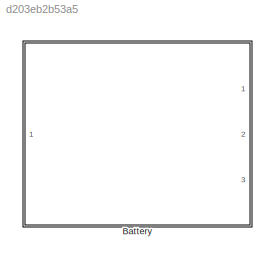
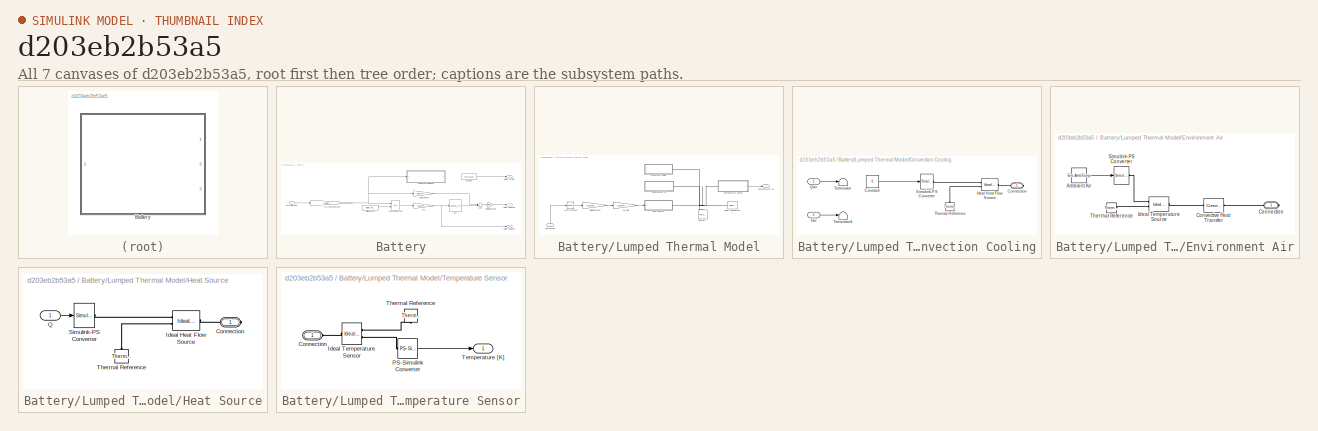
[diagram: thumbnail index - all 7 canvases of the model, root first then tree order]
MODEL slx_d203eb2b53a5
KIND library
CONFIG AbsTol = auto
CONFIG FixedStep = auto
CONFIG MaxStep = auto
CONFIG MinStep = auto
CONFIG RelTol = 1e-3
CONFIG SampleTimeConstraint = Unconstrained
CONFIG Solver = ode45
CONFIG SolverMode = Auto
CONFIG SolverName = ode45
CONFIG StartTime = 0.0
CONFIG StopTime = 10.0
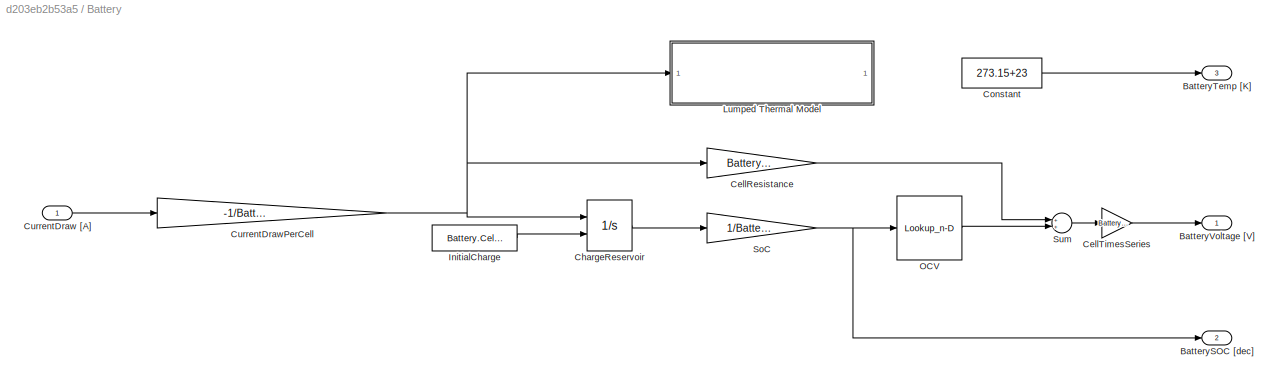
BLOCK [SubSystem] Battery
  Ports = [1, 3]
  RequestExecContextInheritance = off
BLOCK [Outport] Battery/BatterySOC [dec]
  IconDisplay = Port number
  Port = 2
BLOCK [Outport] Battery/BatteryTemp [K]
  IconDisplay = Port number
  Port = 3
BLOCK [Outport] Battery/BatteryVoltage [V]
  IconDisplay = Port number
BLOCK [Gain] Battery/CellResistance
  Gain = Battery.Cell.R
  OutDataTypeStr = Inherit: Inherit via internal rule
  ParamDataTypeStr = Inherit: Inherit via internal rule
  SaturateOnIntegerOverflow = off
BLOCK [Gain] Battery/CellTimesSeries
  Gain = Battery.Cell.NumSeries
  OutDataTypeStr = Inherit: Inherit via internal rule
  ParamDataTypeStr = Inherit: Inherit via internal rule
  SaturateOnIntegerOverflow = off
BLOCK [Integrator] Battery/ChargeReservoir
  InitialConditionSource = external
  Ports = [2, 1]
BLOCK [Constant] Battery/Constant
  Value = 273.15+23
BLOCK [Inport] Battery/CurrentDraw [A]
  IconDisplay = Port number
BLOCK [Gain] Battery/CurrentDrawPerCell
  Gain = -1/Battery.Cell.NumParallel
  OutDataTypeStr = Inherit: Inherit via internal rule
  ParamDataTypeStr = Inherit: Inherit via internal rule
  SaturateOnIntegerOverflow = off
BLOCK [Constant] Battery/InitialCharge
  Value = Battery.Cell.Qi
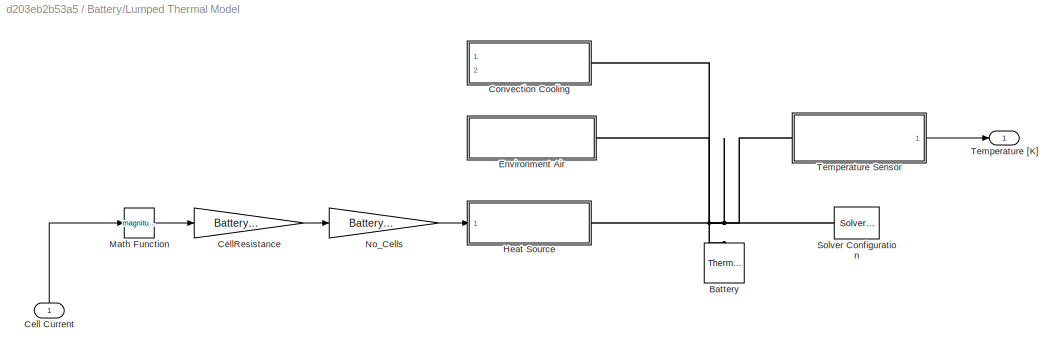
BLOCK [SubSystem] Battery/Lumped Thermal Model
  Commented = on
  Ports = [1, 1]
  RequestExecContextInheritance = off
BLOCK [Reference] Battery/Lumped Thermal Model/Battery  REF=fl_lib/Thermal/Thermal Elements/Thermal Mass
  ClassName = mass
  ComponentPath = foundation.thermal.elements.mass
  ComponentVariantNames = mass
  ComponentVariants = foundation.thermal.elements.mass
  LogSimulationData = off
  Ports = [0, 0, 0, 0, 0, 1]
  Q = 0
  Q_priority = High
  Q_specify = off
  Q_unit = J/s
  SchemaVersion = 1
  SourceBlock = fl_lib/Thermal/Thermal Elements/Thermal Mass
  SourceFile = foundation.thermal.elements.mass
  SourceType = Thermal Mass
  T = 300
  T_priority = High
  T_specify = off
  T_unit = K
  mass = Battery.Cell.m*Battery.Cell.NumParallel * Battery.Cell.NumSeries
  mass_unit = kg
  sp_heat = Battery.Cell.c
  sp_heat_unit = J/kg/K
BLOCK [Inport] Battery/Lumped Thermal Model/Cell Current
  IconDisplay = Port number
BLOCK [Gain] Battery/Lumped Thermal Model/CellResistance
  Gain = Battery.Cell.R
  OutDataTypeStr = Inherit: Inherit via internal rule
  ParamDataTypeStr = Inherit: Inherit via internal rule
  SaturateOnIntegerOverflow = off
BLOCK [SubSystem] Battery/Lumped Thermal Model/Convection Cooling
  Ports = [2, 0, 0, 0, 0, 0, 1]
  RequestExecContextInheritance = off
BLOCK [PMIOPort] Battery/Lumped Thermal Model/Convection Cooling/Connection
  Port = 1
  Side = Right
BLOCK [Constant] Battery/Lumped Thermal Model/Convection Cooling/Constant
  Value = 0
BLOCK [Reference] Battery/Lumped Thermal Model/Convection Cooling/Ideal Heat Flow Source  REF=fl_lib/Thermal/Thermal Sources/Ideal Heat Flow
Source
  ClassName = heat_flow
  ComponentPath = foundation.thermal.sources.heat_flow
  ComponentVariantNames = heat_flow
  ComponentVariants = foundation.thermal.sources.heat_flow
  LogSimulationData = off
  Ports = [0, 0, 0, 0, 0, 1, 2]
  SchemaVersion = 1
  SourceBlock = fl_lib/Thermal/Thermal Sources/Ideal Heat Flow\nSource
  SourceFile = foundation.thermal.sources.heat_flow
  SourceType = Ideal Heat Flow\nSource
BLOCK [Inport] Battery/Lumped Thermal Model/Convection Cooling/Qair
  IconDisplay = Port number
BLOCK [Reference] Battery/Lumped Thermal Model/Convection Cooling/Simulink-PS Converter  REF=nesl_utility/Simulink-PS
Converter
  AffineConversion = off
  Frequencies = []
  InputFilterTimeConstant = 0.001
  InputFiltering = off
  LeftPortType = input
  NoiseDistribution = none
  NoiseParameters = []
  PhysicalDomain = network_engine_domain
  Ports = [1, 0, 0, 0, 0, 0, 1]
  PseudoPeriodic = off
  RightPortType = output
  SimscapeFilterOrder = 1
  SourceBlock = nesl_utility/Simulink-PS\nConverter
  SourceType = Simulink-PS\nConverter
  SubClassName = ps_input
  UdotUserProvided = 1
  Unit = 1
BLOCK [Inport] Battery/Lumped Thermal Model/Convection Cooling/Tair
  IconDisplay = Port number
  Port = 2
BLOCK [Terminator] Battery/Lumped Thermal Model/Convection Cooling/Terminator
BLOCK [Terminator] Battery/Lumped Thermal Model/Convection Cooling/Terminator1
BLOCK [Reference] Battery/Lumped Thermal Model/Convection Cooling/Thermal Reference  REF=fl_lib/Thermal/Thermal Elements/Thermal Reference
  ClassName = reference
  ComponentPath = foundation.thermal.elements.reference
  ComponentVariantNames = reference
  ComponentVariants = foundation.thermal.elements.reference
  LogSimulationData = off
  Ports = [0, 0, 0, 0, 0, 1]
  SchemaVersion = 1
  SourceBlock = fl_lib/Thermal/Thermal Elements/Thermal Reference
  SourceFile = foundation.thermal.elements.reference
  SourceType = Thermal Reference
BLOCK [SubSystem] Battery/Lumped Thermal Model/Environment Air
  Ports = [0, 0, 0, 0, 0, 0, 1]
  RequestExecContextInheritance = off
BLOCK [Constant] Battery/Lumped Thermal Model/Environment Air/Ambient Air
  Value = Env.AmbTemp
BLOCK [PMIOPort] Battery/Lumped Thermal Model/Environment Air/Connection
  Port = 1
  Side = Right
BLOCK [Reference] Battery/Lumped Thermal Model/Environment Air/Convective Heat Transfer  REF=fl_lib/Thermal/Thermal Elements/Convective Heat
Transfer
  ClassName = convection
  ComponentPath = foundation.thermal.elements.convection
  ComponentVariantNames = convection
  ComponentVariants = foundation.thermal.elements.convection
  LogSimulationData = off
  Ports = [0, 0, 0, 0, 0, 1, 1]
  Q = 0
  Q_priority = High
  Q_specify = off
  Q_unit = J/s
  SchemaVersion = 1
  SourceBlock = fl_lib/Thermal/Thermal Elements/Convective Heat\nTransfer
  SourceFile = foundation.thermal.elements.convection
  SourceType = Convective Heat\nTransfer
  T = 0
  T_priority = High
  T_specify = off
  T_unit = K
  area = Battery.SA
  area_unit = m^2
  heat_tr_coeff = Env.NaturalConvection.K
  heat_tr_coeff_unit = W/(m^2 * K)
BLOCK [Reference] Battery/Lumped Thermal Model/Environment Air/Ideal Temperature Source  REF=fl_lib/Thermal/Thermal Sources/Ideal Temperature
Source
  ClassName = temperature
  ComponentPath = foundation.thermal.sources.temperature
  ComponentVariantNames = temperature
  ComponentVariants = foundation.thermal.sources.temperature
  LogSimulationData = off
  Ports = [0, 0, 0, 0, 0, 1, 2]
  SchemaVersion = 1
  SourceBlock = fl_lib/Thermal/Thermal Sources/Ideal Temperature\nSource
  SourceFile = foundation.thermal.sources.temperature
  SourceType = Ideal Temperature\nSource
BLOCK [Reference] Battery/Lumped Thermal Model/Environment Air/Simulink-PS Converter  REF=nesl_utility/Simulink-PS
Converter
  AffineConversion = off
  Frequencies = []
  InputFilterTimeConstant = 0.001
  InputFiltering = off
  LeftPortType = input
  NoiseDistribution = none
  NoiseParameters = []
  PhysicalDomain = network_engine_domain
  Ports = [1, 0, 0, 0, 0, 0, 1]
  PseudoPeriodic = off
  RightPortType = output
  SimscapeFilterOrder = 1
  SourceBlock = nesl_utility/Simulink-PS\nConverter
  SourceType = Simulink-PS\nConverter
  SubClassName = ps_input
  UdotUserProvided = 1
  Unit = 1
BLOCK [Reference] Battery/Lumped Thermal Model/Environment Air/Thermal Reference  REF=fl_lib/Thermal/Thermal Elements/Thermal Reference
  ClassName = reference
  ComponentPath = foundation.thermal.elements.reference
  ComponentVariantNames = reference
  ComponentVariants = foundation.thermal.elements.reference
  LogSimulationData = off
  Ports = [0, 0, 0, 0, 0, 1]
  SchemaVersion = 1
  SourceBlock = fl_lib/Thermal/Thermal Elements/Thermal Reference
  SourceFile = foundation.thermal.elements.reference
  SourceType = Thermal Reference
BLOCK [SubSystem] Battery/Lumped Thermal Model/Heat Source
  Ports = [1, 0, 0, 0, 0, 0, 1]
  RequestExecContextInheritance = off
BLOCK [PMIOPort] Battery/Lumped Thermal Model/Heat Source/Connection
  Port = 1
  Side = Right
BLOCK [Reference] Battery/Lumped Thermal Model/Heat Source/Ideal Heat Flow Source  REF=fl_lib/Thermal/Thermal Sources/Ideal Heat Flow
Source
  ClassName = heat_flow
  ComponentPath = foundation.thermal.sources.heat_flow
  ComponentVariantNames = heat_flow
  ComponentVariants = foundation.thermal.sources.heat_flow
  LogSimulationData = off
  Ports = [0, 0, 0, 0, 0, 1, 2]
  SchemaVersion = 1
  SourceBlock = fl_lib/Thermal/Thermal Sources/Ideal Heat Flow\nSource
  SourceFile = foundation.thermal.sources.heat_flow
  SourceType = Ideal Heat Flow\nSource
BLOCK [Inport] Battery/Lumped Thermal Model/Heat Source/Q
  IconDisplay = Port number
BLOCK [Reference] Battery/Lumped Thermal Model/Heat Source/Simulink-PS Converter  REF=nesl_utility/Simulink-PS
Converter
  AffineConversion = off
  Frequencies = []
  InputFilterTimeConstant = 0.001
  InputFiltering = off
  LeftPortType = input
  NoiseDistribution = none
  NoiseParameters = []
  PhysicalDomain = network_engine_domain
  Ports = [1, 0, 0, 0, 0, 0, 1]
  PseudoPeriodic = off
  RightPortType = output
  SimscapeFilterOrder = 1
  SourceBlock = nesl_utility/Simulink-PS\nConverter
  SourceType = Simulink-PS\nConverter
  SubClassName = ps_input
  UdotUserProvided = 1
  Unit = 1
BLOCK [Reference] Battery/Lumped Thermal Model/Heat Source/Thermal Reference  REF=fl_lib/Thermal/Thermal Elements/Thermal Reference
  ClassName = reference
  ComponentPath = foundation.thermal.elements.reference
  ComponentVariantNames = reference
  ComponentVariants = foundation.thermal.elements.reference
  LogSimulationData = off
  Ports = [0, 0, 0, 0, 0, 1]
  SchemaVersion = 1
  SourceBlock = fl_lib/Thermal/Thermal Elements/Thermal Reference
  SourceFile = foundation.thermal.elements.reference
  SourceType = Thermal Reference
BLOCK [Math] Battery/Lumped Thermal Model/Math Function
  Operator = magnitude^2
  Ports = [1, 1]
BLOCK [Gain] Battery/Lumped Thermal Model/No_Cells
  Gain = Battery.Cell.NumParallel * Battery.Cell.NumSeries
  OutDataTypeStr = Inherit: Inherit via internal rule
  ParamDataTypeStr = Inherit: Inherit via internal rule
  SaturateOnIntegerOverflow = off
BLOCK [Reference] Battery/Lumped Thermal Model/Solver Configuration  REF=nesl_utility/Solver
Configuration
  AbsTol = 1e-06
  Accelerate = off
  AutomaticFiltering = on
  DelaysMemoryBudget = 1024
  DoDC = off
  DoFixedCost = off
  EnableSwitchedLinearOptims = on
  FilteringTimeConstant = 0.001
  FrequencyDomain = off
  Harmonics = []
  LeftPortType = input
  LinearAlgebra = Sparse
  LocalSolverChoice = NE_BACKWARD_EULER_ADVANCER
  LocalSolverSampleTime = 0.001
  MaxModeIter = 2
  MaxNonlinIter = 3
  MinStep = 1e-09
  NumHomotopyIterations = 100
  PhysicalDomain = network_engine_domain
  Ports = [0, 0, 0, 0, 0, 0, 1]
  Profile = off
  RelTol = 0.001
  ResidualTolerance = 1e-09
  RevertToSquareIcSolve = off
  RightPortType = generic
  SimulateNoise = off
  SourceBlock = nesl_utility/Solver\nConfiguration
  SourceType = Solver\nConfiguration
  SubClassName = solver
  ToWorkspace = off
  Tones = []
  UseCCode = off
  UseLocalSampling = off
  UseLocalSolver = off
BLOCK [SubSystem] Battery/Lumped Thermal Model/Temperature Sensor
  Ports = [0, 1, 0, 0, 0, 1]
  RequestExecContextInheritance = off
BLOCK [PMIOPort] Battery/Lumped Thermal Model/Temperature Sensor/Connection
  Port = 1
  Side = Left
BLOCK [Reference] Battery/Lumped Thermal Model/Temperature Sensor/Ideal Temperature Sensor  REF=fl_lib/Thermal/Thermal Sensors/Ideal Temperature
Sensor
  ClassName = temperature
  ComponentPath = foundation.thermal.sensors.temperature
  ComponentVariantNames = temperature
  ComponentVariants = foundation.thermal.sensors.temperature
  LogSimulationData = off
  Ports = [0, 0, 0, 0, 0, 1, 2]
  SchemaVersion = 1
  SourceBlock = fl_lib/Thermal/Thermal Sensors/Ideal Temperature\nSensor
  SourceFile = foundation.thermal.sensors.temperature
  SourceType = Ideal Temperature\nSensor
BLOCK [Reference] Battery/Lumped Thermal Model/Temperature Sensor/PS-Simulink Converter  REF=nesl_utility/PS-Simulink
Converter
  AffineConversion = off
  Frequencies = []
  LeftPortType = input
  PhysicalDomain = network_engine_domain
  Ports = [0, 1, 0, 0, 0, 1]
  PseudoPeriodic = off
  RightPortType = output
  SourceBlock = nesl_utility/PS-Simulink\nConverter
  SourceType = PS-Simulink\nConverter
  SubClassName = ps_output
  Unit = 1
BLOCK [Outport] Battery/Lumped Thermal Model/Temperature Sensor/Temperature [K]
  IconDisplay = Port number
BLOCK [Reference] Battery/Lumped Thermal Model/Temperature Sensor/Thermal Reference  REF=fl_lib/Thermal/Thermal Elements/Thermal Reference
  ClassName = reference
  ComponentPath = foundation.thermal.elements.reference
  ComponentVariantNames = reference
  ComponentVariants = foundation.thermal.elements.reference
  LogSimulationData = off
  Ports = [0, 0, 0, 0, 0, 1]
  SchemaVersion = 1
  SourceBlock = fl_lib/Thermal/Thermal Elements/Thermal Reference
  SourceFile = foundation.thermal.elements.reference
  SourceType = Thermal Reference
BLOCK [Outport] Battery/Lumped Thermal Model/Temperature [K]
  IconDisplay = Port number
BLOCK [Lookup_n-D] Battery/OCV
  BreakpointsForDimension1 = Battery.Cell.VoltOC.SoC
  InternalRulePriority = Speed
  NumberOfTableDimensions = 1
  Ports = [1, 1]
  RndMeth = Simplest
  Table = Battery.Cell.VoltOC.Voltage
BLOCK [Gain] Battery/SoC
  Gain = 1/Battery.Cell.Qi
  OutDataTypeStr = Inherit: Inherit via internal rule
  ParamDataTypeStr = Inherit: Inherit via internal rule
  SaturateOnIntegerOverflow = off
BLOCK [Sum] Battery/Sum
  InputSameDT = off
  OutDataTypeStr = Inherit: Inherit via internal rule
  Ports = [2, 1]
  SaturateOnIntegerOverflow = off
LINE Battery/CellResistance:1 -> Battery/Sum:1
LINE Battery/CellTimesSeries:1 -> Battery/BatteryVoltage [V]:1
LINE Battery/ChargeReservoir:1 -> Battery/SoC:1
LINE Battery/Constant:1 -> Battery/BatteryTemp [K]:1
LINE Battery/CurrentDraw [A]:1 -> Battery/CurrentDrawPerCell:1
NET Battery/CurrentDrawPerCell:1 -> Battery/CellResistance:1, Battery/ChargeReservoir:1, Battery/Lumped Thermal Model:1
LINE Battery/InitialCharge:1 -> Battery/ChargeReservoir:2
LINE Battery/Lumped Thermal Model/Cell Current:1 -> Battery/Lumped Thermal Model/Math Function:1
LINE Battery/Lumped Thermal Model/CellResistance:1 -> Battery/Lumped Thermal Model/No_Cells:1
LINE Battery/Lumped Thermal Model/Convection Cooling/Constant:1 -> Battery/Lumped Thermal Model/Convection Cooling/Simulink-PS Converter:1
LINE Battery/Lumped Thermal Model/Convection Cooling/Qair:1 -> Battery/Lumped Thermal Model/Convection Cooling/Terminator:1
LINE Battery/Lumped Thermal Model/Convection Cooling/Tair:1 -> Battery/Lumped Thermal Model/Convection Cooling/Terminator1:1
LINE Battery/Lumped Thermal Model/Environment Air/Ambient Air:1 -> Battery/Lumped Thermal Model/Environment Air/Simulink-PS Converter:1
LINE Battery/Lumped Thermal Model/Heat Source/Q:1 -> Battery/Lumped Thermal Model/Heat Source/Simulink-PS Converter:1
LINE Battery/Lumped Thermal Model/Math Function:1 -> Battery/Lumped Thermal Model/CellResistance:1
LINE Battery/Lumped Thermal Model/No_Cells:1 -> Battery/Lumped Thermal Model/Heat Source:1
LINE Battery/Lumped Thermal Model/Temperature Sensor/PS-Simulink Converter:1 -> Battery/Lumped Thermal Model/Temperature Sensor/Temperature [K]:1
LINE Battery/Lumped Thermal Model/Temperature Sensor:1 -> Battery/Lumped Thermal Model/Temperature [K]:1
LINE Battery/OCV:1 -> Battery/Sum:2
NET Battery/SoC:1 -> Battery/BatterySOC [dec]:1, Battery/OCV:1
LINE Battery/Sum:1 -> Battery/CellTimesSeries:1
PNET net1: Battery/Lumped Thermal Model/Battery:LConn1 -- Battery/Lumped Thermal Model/Convection Cooling:RConn1 -- Battery/Lumped Thermal Model/Environment Air:RConn1 -- Battery/Lumped Thermal Model/Heat Source:RConn1 -- Battery/Lumped Thermal Model/Solver Configuration:RConn1 -- Battery/Lumped Thermal Model/Temperature Sensor:LConn1
PLINE Battery/Lumped Thermal Model/Convection Cooling/Connection:RConn1 -- Battery/Lumped Thermal Model/Convection Cooling/Ideal Heat Flow Source:LConn1
PLINE Battery/Lumped Thermal Model/Convection Cooling/Ideal Heat Flow Source:RConn1 -- Battery/Lumped Thermal Model/Convection Cooling/Simulink-PS Converter:RConn1
PLINE Battery/Lumped Thermal Model/Convection Cooling/Ideal Heat Flow Source:RConn2 -- Battery/Lumped Thermal Model/Convection Cooling/Thermal Reference:LConn1
PLINE Battery/Lumped Thermal Model/Environment Air/Connection:RConn1 -- Battery/Lumped Thermal Model/Environment Air/Convective Heat Transfer:RConn1
PLINE Battery/Lumped Thermal Model/Environment Air/Convective Heat Transfer:LConn1 -- Battery/Lumped Thermal Model/Environment Air/Ideal Temperature Source:LConn1
PLINE Battery/Lumped Thermal Model/Environment Air/Ideal Temperature Source:RConn1 -- Battery/Lumped Thermal Model/Environment Air/Simulink-PS Converter:RConn1
PLINE Battery/Lumped Thermal Model/Environment Air/Ideal Temperature Source:RConn2 -- Battery/Lumped Thermal Model/Environment Air/Thermal Reference:LConn1
PLINE Battery/Lumped Thermal Model/Heat Source/Connection:RConn1 -- Battery/Lumped Thermal Model/Heat Source/Ideal Heat Flow Source:LConn1
PLINE Battery/Lumped Thermal Model/Heat Source/Ideal Heat Flow Source:RConn1 -- Battery/Lumped Thermal Model/Heat Source/Simulink-PS Converter:RConn1
PLINE Battery/Lumped Thermal Model/Heat Source/Ideal Heat Flow Source:RConn2 -- Battery/Lumped Thermal Model/Heat Source/Thermal Reference:LConn1
PLINE Battery/Lumped Thermal Model/Temperature Sensor/Connection:RConn1 -- Battery/Lumped Thermal Model/Temperature Sensor/Ideal Temperature Sensor:LConn1
PLINE Battery/Lumped Thermal Model/Temperature Sensor/Ideal Temperature Sensor:RConn1 -- Battery/Lumped Thermal Model/Temperature Sensor/Thermal Reference:LConn1
PLINE Battery/Lumped Thermal Model/Temperature Sensor/Ideal Temperature Sensor:RConn2 -- Battery/Lumped Thermal Model/Temperature Sensor/PS-Simulink Converter:LConn1
note: NET lines group one-source signal fan-out (src -> all destinations, sorted); 1:1 wires keep LINE; PNET lines group multi-terminal physical nets as a canonical sorted terminal list (undirected conserving connections); 2-terminal nets keep the pairwise PLINE form
